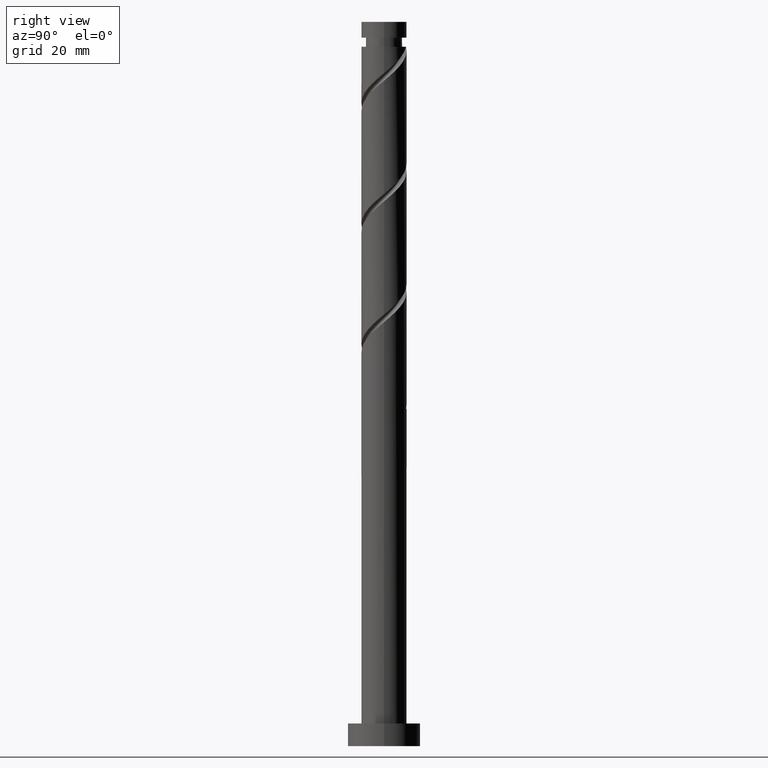
[diagram: clean part render]
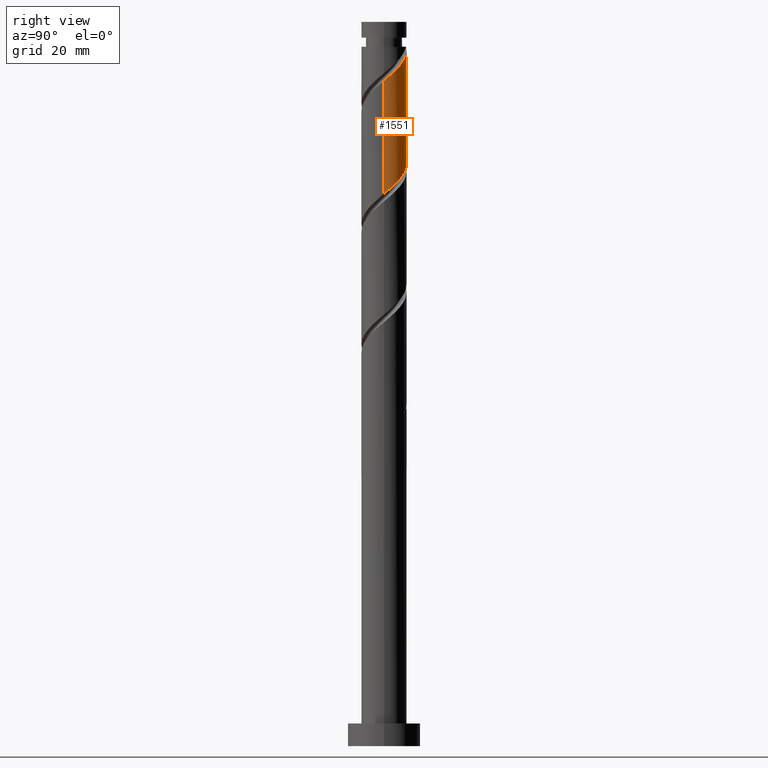
[diagram: same view with one face highlighted and labeled with its STEP entity id]
A machine part, right view. The second image highlights one B-rep face of the part: STEP entity #1551.
In plain terms, the highlighted cylindrical surface (edge-blend (fillet) strip) has radius 5 mm, axis along (-0, -0, -1).
Its self-contained STEP definition (entity closure, byte-faithful):
#12 = CARTESIAN_POINT ( 'NONE',  ( -0.4258060737845053567, 4.981835925392186226, 129.0599498821448208 ) ) ;
#18 = ORIENTED_EDGE ( 'NONE', *, *, #1530, .T. ) ;
#30 = CARTESIAN_POINT ( 'NONE',  ( 5.000000000000000000, 7.343798965416794784E-15, 122.0306164826577913 ) ) ;
#57 = VECTOR ( 'NONE', #896, 1000.000000000000000 ) ;
#94 = CYLINDRICAL_SURFACE ( 'NONE', #1528, 5.000000000000000000 ) ;
#112 = CARTESIAN_POINT ( 'NONE',  ( 4.999999999999998224, 0.5726446369256228408, 122.5165764356290907 ) ) ;
#133 = CARTESIAN_POINT ( 'NONE',  ( 4.707993719930679610, 1.830737577780031655, 123.6054044275993391 ) ) ;
#152 = CARTESIAN_POINT ( 'NONE',  ( 3.051594711005889859, 3.960778928413066780, 150.8781317003266338 ) ) ;
#189 = CIRCLE ( 'NONE', #976, 4.999999999999993783 ) ;
#203 = CARTESIAN_POINT ( 'NONE',  ( -5.000000000000000000, 0.1438776326191087418, 135.2418518112729089 ) ) ;
#220 = CARTESIAN_POINT ( 'NONE',  ( -0.9949874371065349221, 4.899999999999843148, 154.5144953366901461 ) ) ;
#251 = ORIENTED_EDGE ( 'NONE', *, *, #696, .F. ) ;
#252 = CARTESIAN_POINT ( 'NONE',  ( 0.2904737965312522707, 5.043057596253619046, 128.4538892760841975 ) ) ;
#268 = CARTESIAN_POINT ( 'NONE',  ( -2.482120673787417964, 4.399532009925572140, 130.8781317003266054 ) ) ;
#296 = VERTEX_POINT ( 'NONE', #470 ) ;
#313 = CARTESIAN_POINT ( 'NONE',  ( 2.482120673787420628, 4.399532009925577469, 151.4841923063872287 ) ) ;
#344 = CARTESIAN_POINT ( 'NONE',  ( -4.950387810036377623, 1.005219118324889305, 134.5144953366902882 ) ) ;
#350 = DIRECTION ( 'NONE',  ( -0.000000000000000000, -0.000000000000000000, -1.000000000000000000 ) ) ;
#373 = LINE ( 'NONE', #734, #57 ) ;
#385 = CARTESIAN_POINT ( 'NONE',  ( 0.9949874371066227408, 4.899999999999999467, 127.8478286700235600 ) ) ;
#400 = CARTESIAN_POINT ( 'NONE',  ( 4.043864058114788662, 2.940605971477221026, 149.6660104882053872 ) ) ;
#470 = CARTESIAN_POINT ( 'NONE',  ( 5.000000000000007994, 3.903730203612562477E-15, 146.9983741907226715 ) ) ;
#503 = FACE_OUTER_BOUND ( 'NONE', #1078, .T. ) ;
#505 = CARTESIAN_POINT ( 'NONE',  ( -5.000000000000000000, 0.000000000000000000, 160.0000000000000000 ) ) ;
#540 = CARTESIAN_POINT ( 'NONE',  ( -0.2904737965312439996, 5.043057596253626151, 153.9084347306295513 ) ) ;
#586 = DIRECTION ( 'NONE',  ( -1.000000000000000000, 0.000000000000000000, 0.000000000000000000 ) ) ;
#597 = CARTESIAN_POINT ( 'NONE',  ( -4.999999999999993783, 0.000000000000000000, 154.5144953366902314 ) ) ;
#635 = ORIENTED_EDGE ( 'NONE', *, *, #1172, .F. ) ;
#642 = CARTESIAN_POINT ( 'NONE',  ( 2.335172983261505131, 4.421195216029886410, 126.6357074579023703 ) ) ;
#648 = ORIENTED_EDGE ( 'NONE', *, *, #1381, .F. ) ;
#670 = CARTESIAN_POINT ( 'NONE',  ( 0.4258060737845075217, 4.981835925392195996, 153.3023741245690417 ) ) ;
#696 = EDGE_CURVE ( 'NONE', #1336, #1305, #1655, .T. ) ;
#701 = ORIENTED_EDGE ( 'NONE', *, *, #1283, .T. ) ;
#711 = CARTESIAN_POINT ( 'NONE',  ( 0.000000000000000000, 0.000000000000000000, 154.5144953366902314 ) ) ;
#722 = CARTESIAN_POINT ( 'NONE',  ( -4.991726541412347729, 0.2875171921111933648, 135.1205559427508547 ) ) ;
#734 = CARTESIAN_POINT ( 'NONE',  ( 5.000000000000000000, 6.123233995736766282E-16, 160.0000000000000000 ) ) ;
#737 = CARTESIAN_POINT ( 'NONE',  ( -4.708523589020789935, 1.682202607189386523, 133.9084347306296081 ) ) ;
#773 = CARTESIAN_POINT ( 'NONE',  ( 4.001508515401011934, 3.082974950721432350, 124.8175256397205715 ) ) ;
#798 = CARTESIAN_POINT ( 'NONE',  ( 4.466659368005212905, 2.359186096053887294, 149.0599498821447924 ) ) ;
#806 = CARTESIAN_POINT ( 'NONE',  ( 4.708523589020798816, 1.682202607189387411, 148.4538892760841691 ) ) ;
#862 = VECTOR ( 'NONE', #1158, 1000.000000000000000 ) ;
#877 = VERTEX_POINT ( 'NONE', #30 ) ;
#896 = DIRECTION ( 'NONE',  ( -0.000000000000000000, -0.000000000000000000, -1.000000000000000000 ) ) ;
#898 = CARTESIAN_POINT ( 'NONE',  ( -4.466659368005205799, 2.359186096053885517, 133.3023741245690417 ) ) ;
#912 = CARTESIAN_POINT ( 'NONE',  ( 2.970844888841020381, 4.085448028313394708, 126.0296468518418180 ) ) ;
#933 = CARTESIAN_POINT ( 'NONE',  ( 1.142085944100266204, 4.920614254530760512, 152.6963135185083900 ) ) ;
#976 = AXIS2_PLACEMENT_3D ( 'NONE', #711, #1088, #586 ) ;
#983 =( BOUNDED_CURVE ( )  B_SPLINE_CURVE ( 2, ( #1237, #1426, #1117, #1214, #806, #798, #400, #1468, #152, #313, #1186, #933, #670, #540, #1060 ),
 .UNSPECIFIED., .F., .T. ) 
 B_SPLINE_CURVE_WITH_KNOTS ( ( 3, 2, 2, 2, 2, 2, 2, 3 ),
 ( 0.6795252162417513286, 0.6818181818181818787, 0.6931818181818181213, 0.7045454545454545858, 0.7159090909090908283, 0.7272727272727271819, 0.7386363636363635354, 0.7499999999999998890 ),
 .UNSPECIFIED. ) 
 CURVE ( )  GEOMETRIC_REPRESENTATION_ITEM ( )  RATIONAL_B_SPLINE_CURVE ( ( 0.9061101570135606798, 0.9072237824201427880, 0.9090909090909202739, 0.8998376744372226232, 0.9090909090909202739, 0.8998376744372226232, 0.9090909090909202739, 0.8998376744372226232, 0.9090909090909202739, 0.8998376744372226232, 0.9090909090909202739, 0.8998376744372226232, 0.9090909090909202739, 0.8998376744372227343, 0.9090909090909201629 ) ) 
 REPRESENTATION_ITEM ( '' )  );
#1027 = CARTESIAN_POINT ( 'NONE',  ( 1.699501077681990990, 4.756942403746378112, 127.2417680639629651 ) ) ;
#1045 = CARTESIAN_POINT ( 'NONE',  ( 3.486176702121014603, 3.584211489517413085, 125.4235862457811521 ) ) ;
#1053 = CARTESIAN_POINT ( 'NONE',  ( 4.354751117665844440, 2.456856264250733446, 124.2114650336599482 ) ) ;
#1060 = CARTESIAN_POINT ( 'NONE',  ( -0.9949874371065349221, 4.899999999999843148, 154.5144953366901461 ) ) ;
#1072 = VERTEX_POINT ( 'NONE', #220 ) ;
#1078 = EDGE_LOOP ( 'NONE', ( #648, #18, #635, #251, #701 ) ) ;
#1088 = DIRECTION ( 'NONE',  ( -0.000000000000000000, -0.000000000000000000, -1.000000000000000000 ) ) ;
#1117 = CARTESIAN_POINT ( 'NONE',  ( 4.991726541412356610, 0.2875171921111920881, 147.2417680639629509 ) ) ;
#1158 = DIRECTION ( 'NONE',  ( -0.000000000000000000, -0.000000000000000000, -1.000000000000000000 ) ) ;
#1167 = CARTESIAN_POINT ( 'NONE',  ( -3.051594711005884086, 3.960778928413059674, 131.4841923063872002 ) ) ;
#1172 = EDGE_CURVE ( 'NONE', #1305, #877, #1268, .T. ) ;
#1173 = CARTESIAN_POINT ( 'NONE',  ( -4.043864058114778004, 2.940605971477216585, 132.6963135185084184 ) ) ;
#1186 = CARTESIAN_POINT ( 'NONE',  ( 1.812103308943843416, 4.660073132228168546, 152.0902529124477951 ) ) ;
#1214 = CARTESIAN_POINT ( 'NONE',  ( 4.950387810036383840, 1.005219118324888861, 147.8478286700236026 ) ) ;
#1237 = CARTESIAN_POINT ( 'NONE',  ( 5.000000000000007994, 3.903730203612562477E-15, 146.9983741907226715 ) ) ;
#1249 = CARTESIAN_POINT ( 'NONE',  ( -4.999999999999999112, -1.510638891053149259E-15, 135.3639498159911341 ) ) ;
#1268 =( BOUNDED_CURVE ( )  B_SPLINE_CURVE ( 2, ( #1249, #203, #722, #344, #737, #898, #1173, #1418, #1167, #268, #1534, #1291, #12, #252, #385, #1027, #642, #912, #1045, #773, #1053, #133, #1281, #112, #1648 ),
 .UNSPECIFIED., .F., .T. ) 
 B_SPLINE_CURVE_WITH_KNOTS ( ( 3, 2, 2, 2, 2, 2, 2, 2, 2, 2, 2, 2, 3 ),
 ( 0.4295252162417512731, 0.4318181818181818232, 0.4431818181818181768, 0.4545454545454545303, 0.4659090909090908839, 0.4772727272727272929, 0.4886363636363636465, 0.5000000000000000000, 0.5113636363636363535, 0.5227272727272727071, 0.5340909090909090606, 0.5454545454545454142, 0.5545252162417511066 ),
 .UNSPECIFIED. ) 
 CURVE ( )  GEOMETRIC_REPRESENTATION_ITEM ( )  RATIONAL_B_SPLINE_CURVE ( ( 0.9061101570135534633, 0.9072237824201356826, 0.9090909090909131685, 0.8998376744372155178, 0.9090909090909131685, 0.8998376744372155178, 0.9090909090909131685, 0.8998376744372155178, 0.9090909090909131685, 0.8998376744372155178, 0.9090909090909131685, 0.8998376744372155178, 0.9090909090909131685, 0.8998376744372155178, 0.9090909090909131685, 0.8998376744372155178, 0.9090909090909131685, 0.8998376744372155178, 0.9090909090909131685, 0.8998376744372155178, 0.9090909090909131685, 0.8998376744372155178, 0.9090909090909131685, 0.9017048011079931147, 0.9061101570135534633 ) ) 
 REPRESENTATION_ITEM ( '' )  );
#1281 = CARTESIAN_POINT ( 'NONE',  ( 4.870529496359501387, 1.130461155941266949, 122.9993438215387158 ) ) ;
#1283 = EDGE_CURVE ( 'NONE', #1336, #1072, #189, .T. ) ;
#1291 = CARTESIAN_POINT ( 'NONE',  ( -1.142085944100262873, 4.920614254530754295, 129.6660104882054441 ) ) ;
#1305 = VERTEX_POINT ( 'NONE', #1606 ) ;
#1336 = VERTEX_POINT ( 'NONE', #597 ) ;
#1381 = EDGE_CURVE ( 'NONE', #296, #1072, #983, .T. ) ;
#1402 = CARTESIAN_POINT ( 'NONE',  ( 0.000000000000000000, 0.000000000000000000, 160.0000000000000000 ) ) ;
#1418 = CARTESIAN_POINT ( 'NONE',  ( -3.621068748224353318, 3.522025846900549428, 132.0902529124478235 ) ) ;
#1426 = CARTESIAN_POINT ( 'NONE',  ( 5.000000000000006217, 0.1438776326191087140, 147.1204721954408683 ) ) ;
#1468 = CARTESIAN_POINT ( 'NONE',  ( 3.621068748224361311, 3.522025846900553869, 150.2720710942659821 ) ) ;
#1528 = AXIS2_PLACEMENT_3D ( 'NONE', #1402, #350, #1633 ) ;
#1530 = EDGE_CURVE ( 'NONE', #296, #877, #373, .T. ) ;
#1534 = CARTESIAN_POINT ( 'NONE',  ( -1.812103308943839419, 4.660073132228159665, 130.2720710942660105 ) ) ;
#1551 = ADVANCED_FACE ( 'NONE', ( #503 ), #94, .T. ) ;
#1606 = CARTESIAN_POINT ( 'NONE',  ( -4.999999999999999112, -1.510638891053149259E-15, 135.3639498159911341 ) ) ;
#1633 = DIRECTION ( 'NONE',  ( -1.000000000000000000, 0.000000000000000000, 0.000000000000000000 ) ) ;
#1648 = CARTESIAN_POINT ( 'NONE',  ( 5.000000000000000000, 7.343798965416794784E-15, 122.0306164826578055 ) ) ;
#1655 = LINE ( 'NONE', #505, #862 ) ;